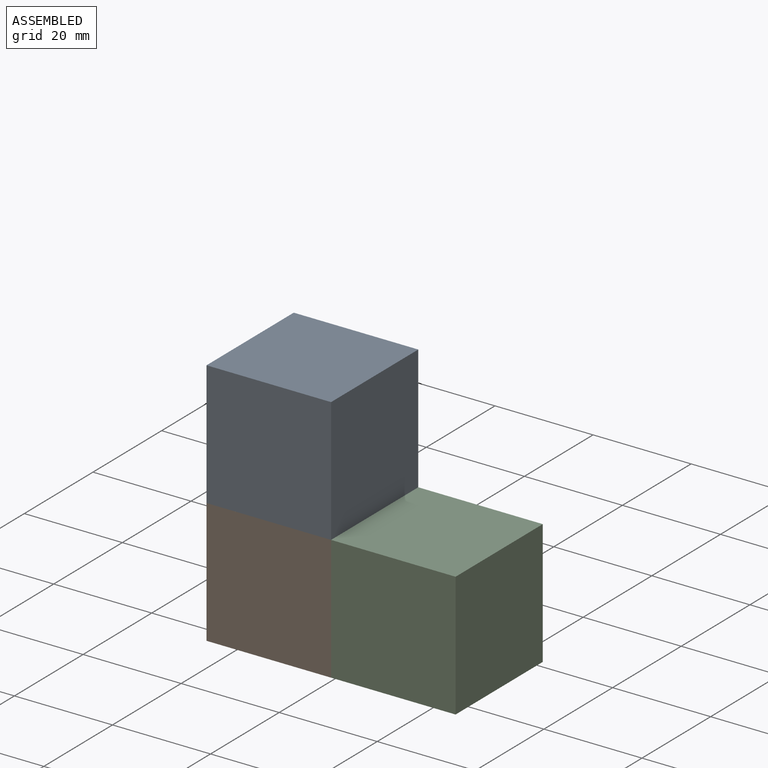
[diagram: assembled view]
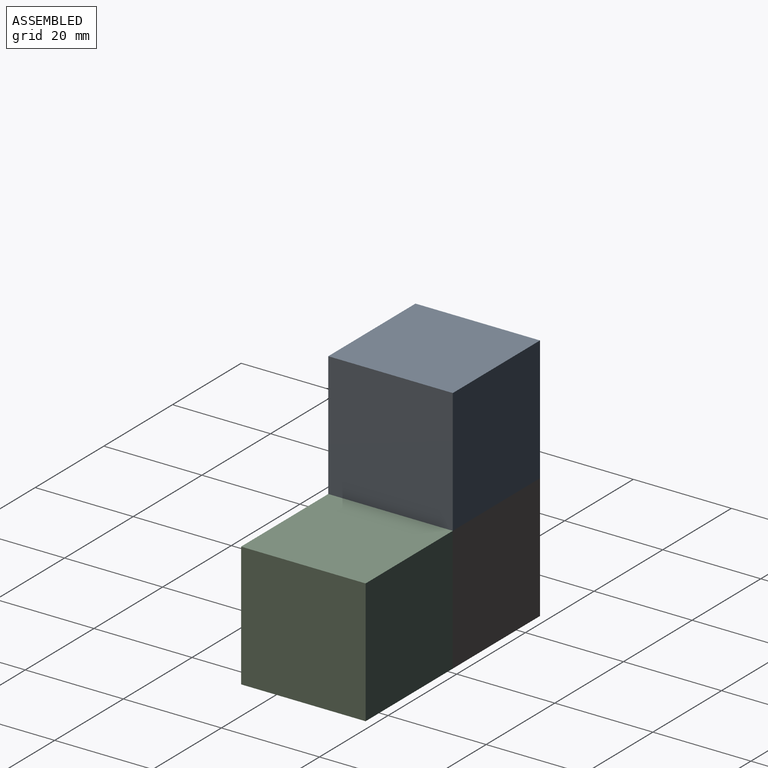
[diagram: assembled view, second angle]
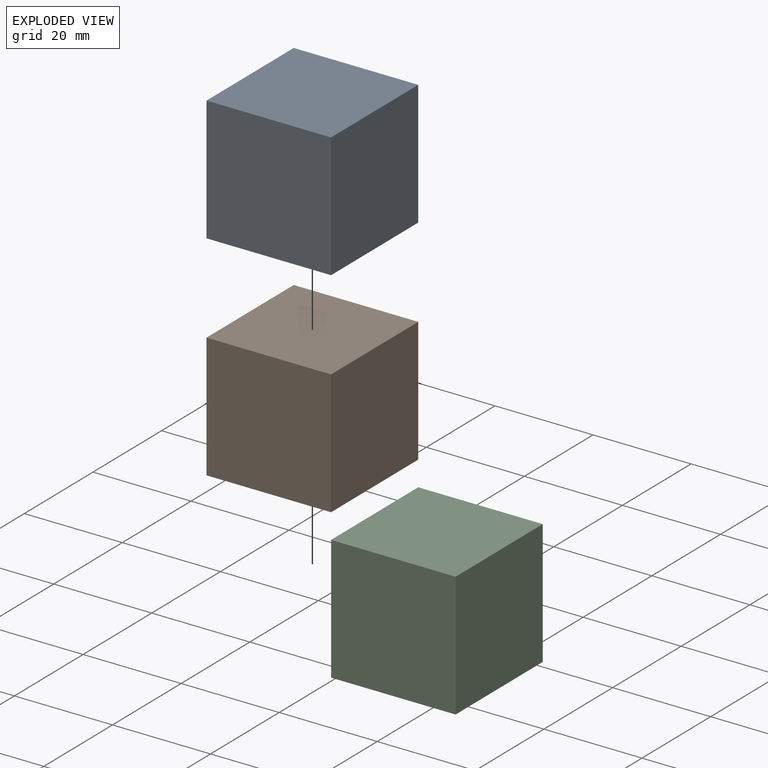
[diagram: exploded view]
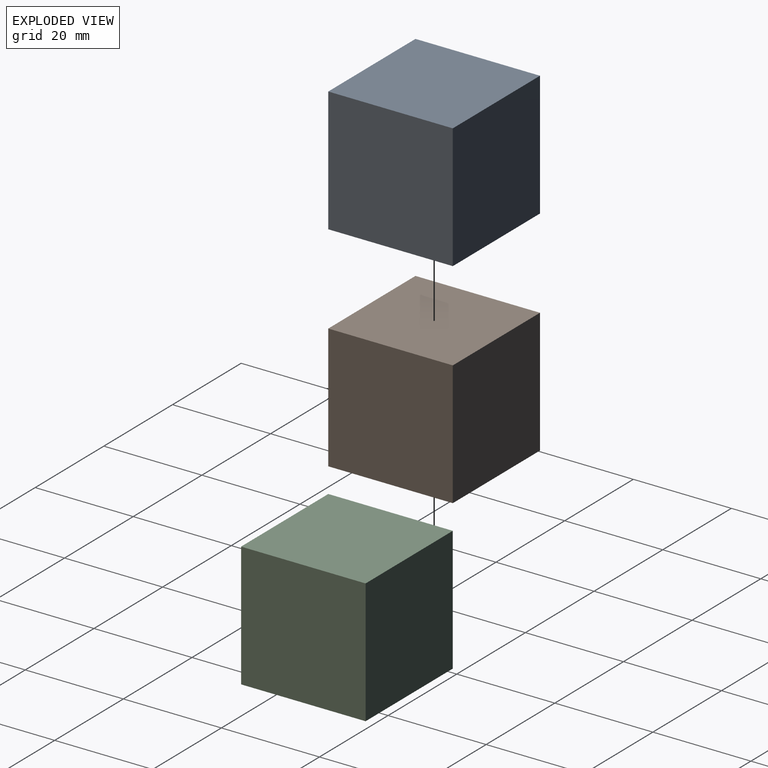
[diagram: exploded view, second angle]
ASSEMBLY  parts=3 mates=2
PART A: 6 faces, bbox 25.4x25.4x25.4 mm
  f0: plane 25.4x25.4mm, normal (-1,0,0), area 645.2mm2, adj f1,f3,f4,f5
  f1: plane 25.4x25.4mm, normal (0,0,-1), area 645.2mm2, adj f0,f2,f4,f5
  f2: plane 25.4x25.4mm, normal (1,0,0), area 645.2mm2, adj f1,f3,f4,f5
  f3: plane 25.4x25.4mm, normal (0,0,1), area 645.2mm2, adj f0,f2,f4,f5
  f4: plane 25.4x25.4mm, normal (0,-1,0), area 645.2mm2, adj f0,f1,f2,f3
  f5: plane 25.4x25.4mm, normal (0,1,0), area 645.2mm2, adj f0,f1,f2,f3
PART B: same geometry as A
PART C: same geometry as A
PLACE A rot(axis=(0.71,0,-0.71),180deg) t=(-19.38,-25.76,46.29)mm
PLACE B rot(axis=(0.58,-0.58,0.58),120deg) t=(-44.78,-0.36,-4.51)mm
PLACE C rot(axis=(0.71,0.71,0),180deg) t=(6.02,-25.76,20.89)mm
MATE fastened A.f2 <-> B.f2  axis (0,0,-1) through (-32.08,-13.06,20.89)mm
MATE fastened C.f4 <-> B.f4  axis (-1,0,0) through (-19.38,-13.06,8.19)mm
